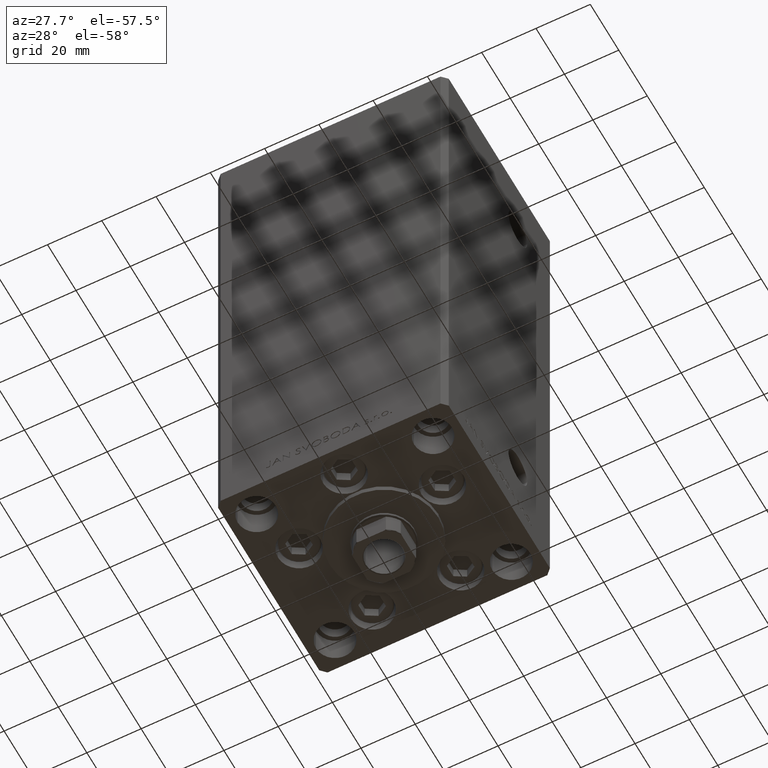
[diagram: clean part render]
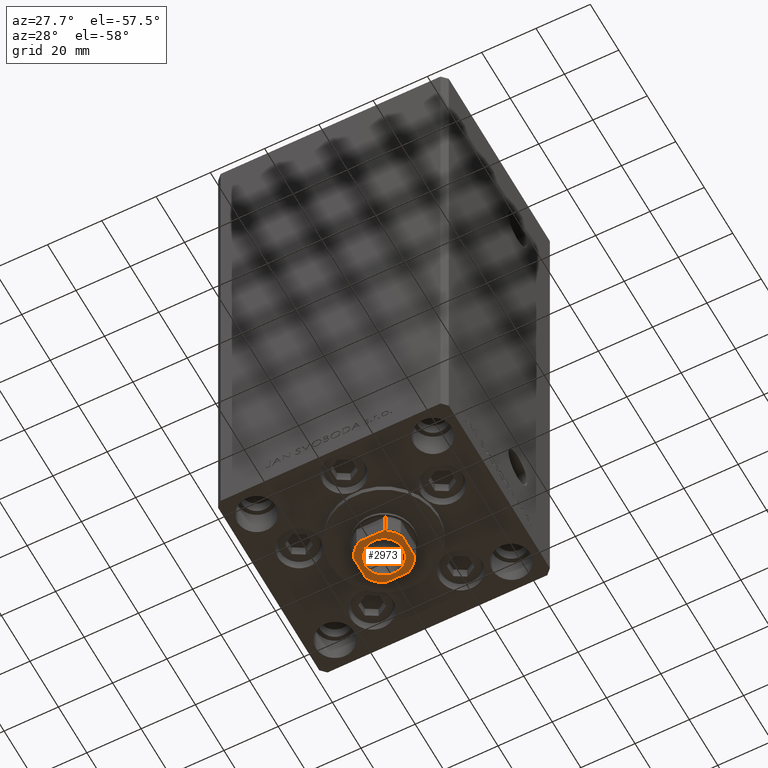
[diagram: same view with one face highlighted and labeled with its STEP entity id]
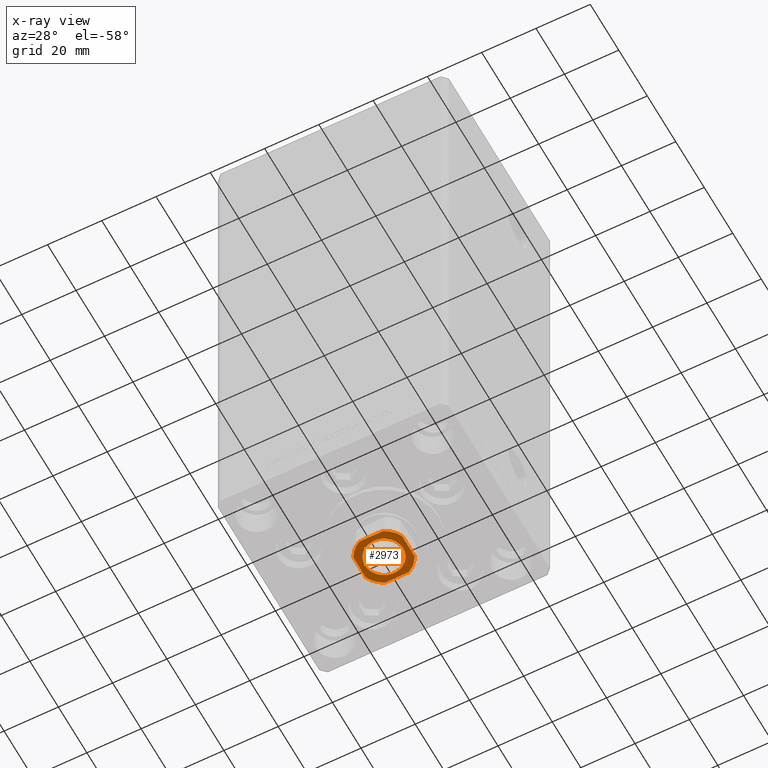
[diagram: x-ray of the same camera — body ghosted, the highlighted face saturated]
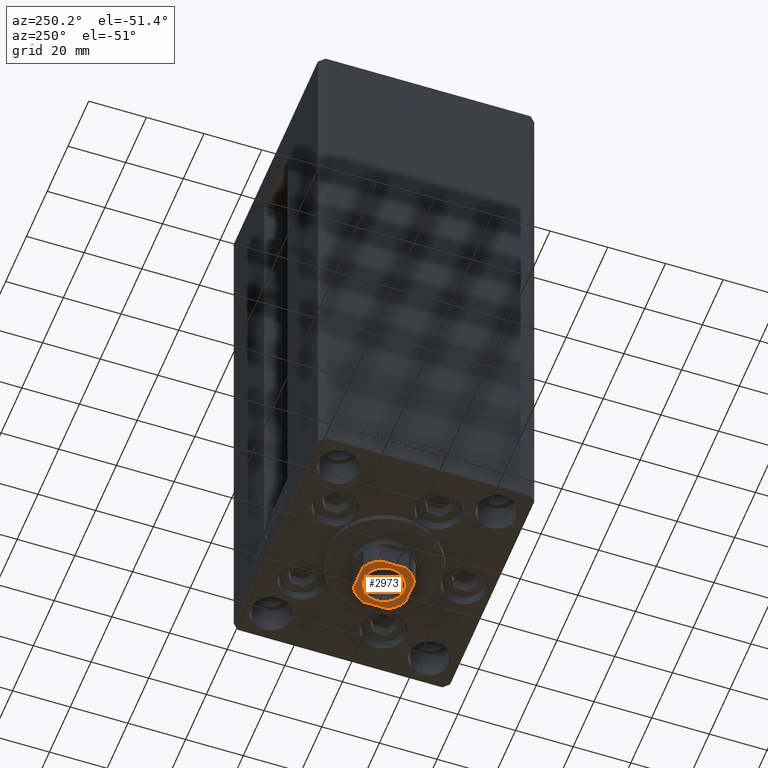
[diagram: same view with one face highlighted and labeled with its STEP entity id]
A machine part, auxiliary view. The second image highlights one B-rep face of the part: STEP entity #2973.
The next image is the same camera in x-ray: the body ghosted, the highlighted face saturated — about 0% of this face is hidden behind the body in this view.
A second angle (auxiliary view) of the same face is appended — the face is thin or edge-on in the first view.
In plain terms, the highlighted planar face has unit normal (0, 0, -1).
Its self-contained STEP definition (entity closure, byte-faithful):
#407 = ORIENTED_EDGE ( 'NONE', *, *, #11446, .T. ) ;
#577 = DIRECTION ( 'NONE',  ( 1.000000000000000000, 0.000000000000000000, 0.000000000000000000 ) ) ;
#586 = LINE ( 'NONE', #16747, #32883 ) ;
#851 = VERTEX_POINT ( 'NONE', #17449 ) ;
#2512 = FACE_BOUND ( 'NONE', #23410, .T. ) ;
#2888 = CIRCLE ( 'NONE', #44259, 7.050000000000028244 ) ;
#2910 = CARTESIAN_POINT ( 'NONE',  ( -4.358898943540671311, -9.000000000000001776, 175.7500000000000284 ) ) ;
#2973 = ADVANCED_FACE ( 'NONE', ( #2512, #17470 ), #36911, .T. ) ;
#3131 = CARTESIAN_POINT ( 'NONE',  ( 0.000000000000000000, 0.000000000000000000, 175.7500000000000284 ) ) ;
#3571 = EDGE_CURVE ( 'NONE', #11387, #29198, #12149, .T. ) ;
#5464 = VECTOR ( 'NONE', #9545, 1000.000000000000000 ) ;
#6089 = VERTEX_POINT ( 'NONE', #2910 ) ;
#6193 = VERTEX_POINT ( 'NONE', #27797 ) ;
#6340 = AXIS2_PLACEMENT_3D ( 'NONE', #17231, #25430, #17719 ) ;
#7433 = AXIS2_PLACEMENT_3D ( 'NONE', #27467, #23975, #577 ) ;
#9545 = DIRECTION ( 'NONE',  ( 1.000000000000000000, 0.000000000000000000, 0.000000000000000000 ) ) ;
#9819 = CIRCLE ( 'NONE', #7433, 10.00000000000000000 ) ;
#10771 = ORIENTED_EDGE ( 'NONE', *, *, #11124, .T. ) ;
#11102 = ORIENTED_EDGE ( 'NONE', *, *, #3571, .T. ) ;
#11124 = EDGE_CURVE ( 'NONE', #31172, #11387, #9819, .T. ) ;
#11387 = VERTEX_POINT ( 'NONE', #33659 ) ;
#11446 = EDGE_CURVE ( 'NONE', #44466, #18971, #19196, .T. ) ;
#11994 = ORIENTED_EDGE ( 'NONE', *, *, #43130, .T. ) ;
#12149 = LINE ( 'NONE', #31315, #31859 ) ;
#12717 = EDGE_LOOP ( 'NONE', ( #407, #18220, #43426, #10771, #11102, #18203, #17786, #40448 ) ) ;
#12793 = LINE ( 'NONE', #24493, #5464 ) ;
#14487 = CARTESIAN_POINT ( 'NONE',  ( -9.000000000000000000, -4.358898943540675752, 175.7500000000000284 ) ) ;
#16747 = CARTESIAN_POINT ( 'NONE',  ( -9.000000000000000000, 8.999999999999998224, 175.7500000000000284 ) ) ;
#17231 = CARTESIAN_POINT ( 'NONE',  ( 0.000000000000000000, 0.000000000000000000, 175.7500000000000284 ) ) ;
#17449 = CARTESIAN_POINT ( 'NONE',  ( 7.050000000000028244, 0.000000000000000000, 175.7500000000000284 ) ) ;
#17470 = FACE_OUTER_BOUND ( 'NONE', #12717, .T. ) ;
#17719 = DIRECTION ( 'NONE',  ( 1.000000000000000000, 0.000000000000000000, 0.000000000000000000 ) ) ;
#17786 = ORIENTED_EDGE ( 'NONE', *, *, #31800, .T. ) ;
#18203 = ORIENTED_EDGE ( 'NONE', *, *, #47242, .T. ) ;
#18220 = ORIENTED_EDGE ( 'NONE', *, *, #28429, .T. ) ;
#18564 = AXIS2_PLACEMENT_3D ( 'NONE', #38787, #46505, #20327 ) ;
#18971 = VERTEX_POINT ( 'NONE', #14487 ) ;
#19196 = LINE ( 'NONE', #39111, #36870 ) ;
#20171 = DIRECTION ( 'NONE',  ( 9.637352644315595243E-17, -1.000000000000000000, 0.000000000000000000 ) ) ;
#20327 = DIRECTION ( 'NONE',  ( 1.000000000000000000, 0.000000000000000000, 0.000000000000000000 ) ) ;
#23410 = EDGE_LOOP ( 'NONE', ( #11994, #29056 ) ) ;
#23975 = DIRECTION ( 'NONE',  ( -0.000000000000000000, 0.000000000000000000, 1.000000000000000000 ) ) ;
#24493 = CARTESIAN_POINT ( 'NONE',  ( -8.999999999999998224, -9.000000000000001776, 175.7500000000000284 ) ) ;
#24849 = CARTESIAN_POINT ( 'NONE',  ( -7.050000000000028244, 8.633759933988874488E-16, 175.7500000000000284 ) ) ;
#25221 = DIRECTION ( 'NONE',  ( 0.000000000000000000, -0.000000000000000000, -1.000000000000000000 ) ) ;
#25430 = DIRECTION ( 'NONE',  ( -0.000000000000000000, 0.000000000000000000, 1.000000000000000000 ) ) ;
#25819 = DIRECTION ( 'NONE',  ( 1.000000000000000000, 0.000000000000000000, 0.000000000000000000 ) ) ;
#26975 = CIRCLE ( 'NONE', #28559, 10.00000000000000000 ) ;
#27315 = CIRCLE ( 'NONE', #18564, 10.00000000000000000 ) ;
#27467 = CARTESIAN_POINT ( 'NONE',  ( 0.000000000000000000, 0.000000000000000000, 175.7500000000000284 ) ) ;
#27797 = CARTESIAN_POINT ( 'NONE',  ( -4.358898943540678417, 8.999999999999998224, 175.7500000000000284 ) ) ;
#28216 = CARTESIAN_POINT ( 'NONE',  ( -9.000000000000000000, 4.358898943540674864, 175.7500000000000284 ) ) ;
#28229 = CIRCLE ( 'NONE', #40967, 7.050000000000028244 ) ;
#28304 = DIRECTION ( 'NONE',  ( -9.637352644315595243E-17, 1.000000000000000000, -0.000000000000000000 ) ) ;
#28429 = EDGE_CURVE ( 'NONE', #18971, #6089, #27315, .T. ) ;
#28559 = AXIS2_PLACEMENT_3D ( 'NONE', #3131, #29559, #25819 ) ;
#29056 = ORIENTED_EDGE ( 'NONE', *, *, #35371, .T. ) ;
#29198 = VERTEX_POINT ( 'NONE', #49029 ) ;
#29559 = DIRECTION ( 'NONE',  ( -0.000000000000000000, 0.000000000000000000, 1.000000000000000000 ) ) ;
#29710 = CARTESIAN_POINT ( 'NONE',  ( 0.000000000000000000, 0.000000000000000000, 175.7500000000000284 ) ) ;
#30627 = CARTESIAN_POINT ( 'NONE',  ( 4.358898943540671311, -9.000000000000001776, 175.7500000000000284 ) ) ;
#30926 = VERTEX_POINT ( 'NONE', #34951 ) ;
#31172 = VERTEX_POINT ( 'NONE', #30627 ) ;
#31315 = CARTESIAN_POINT ( 'NONE',  ( 9.000000000000000000, 8.999999999999998224, 175.7500000000000284 ) ) ;
#31800 = EDGE_CURVE ( 'NONE', #30926, #6193, #586, .T. ) ;
#31859 = VECTOR ( 'NONE', #28304, 1000.000000000000000 ) ;
#32883 = VECTOR ( 'NONE', #43413, 1000.000000000000000 ) ;
#33659 = CARTESIAN_POINT ( 'NONE',  ( 9.000000000000001776, -4.358898943540675752, 175.7500000000000284 ) ) ;
#34951 = CARTESIAN_POINT ( 'NONE',  ( 4.358898943540677529, 8.999999999999998224, 175.7500000000000284 ) ) ;
#35371 = EDGE_CURVE ( 'NONE', #49089, #851, #28229, .T. ) ;
#35682 = CARTESIAN_POINT ( 'NONE',  ( 0.000000000000000000, 0.000000000000000000, 175.7500000000000284 ) ) ;
#36870 = VECTOR ( 'NONE', #20171, 1000.000000000000000 ) ;
#36911 = PLANE ( 'NONE',  #6340 ) ;
#36935 = DIRECTION ( 'NONE',  ( 1.000000000000000000, 0.000000000000000000, 0.000000000000000000 ) ) ;
#37319 = CARTESIAN_POINT ( 'NONE',  ( 0.000000000000000000, 0.000000000000000000, 175.7500000000000284 ) ) ;
#38787 = CARTESIAN_POINT ( 'NONE',  ( 0.000000000000000000, 0.000000000000000000, 175.7500000000000284 ) ) ;
#39111 = CARTESIAN_POINT ( 'NONE',  ( -9.000000000000000000, 8.999999999999998224, 175.7500000000000284 ) ) ;
#39428 = DIRECTION ( 'NONE',  ( 0.000000000000000000, -0.000000000000000000, -1.000000000000000000 ) ) ;
#39533 = AXIS2_PLACEMENT_3D ( 'NONE', #37319, #48780, #47786 ) ;
#39808 = EDGE_CURVE ( 'NONE', #6193, #44466, #40316, .T. ) ;
#40316 = CIRCLE ( 'NONE', #39533, 10.00000000000000000 ) ;
#40448 = ORIENTED_EDGE ( 'NONE', *, *, #39808, .T. ) ;
#40967 = AXIS2_PLACEMENT_3D ( 'NONE', #35682, #39428, #47388 ) ;
#43130 = EDGE_CURVE ( 'NONE', #851, #49089, #2888, .T. ) ;
#43413 = DIRECTION ( 'NONE',  ( -1.000000000000000000, -0.000000000000000000, -0.000000000000000000 ) ) ;
#43426 = ORIENTED_EDGE ( 'NONE', *, *, #46513, .T. ) ;
#44259 = AXIS2_PLACEMENT_3D ( 'NONE', #29710, #25221, #36935 ) ;
#44466 = VERTEX_POINT ( 'NONE', #28216 ) ;
#46505 = DIRECTION ( 'NONE',  ( -0.000000000000000000, 0.000000000000000000, 1.000000000000000000 ) ) ;
#46513 = EDGE_CURVE ( 'NONE', #6089, #31172, #12793, .T. ) ;
#47242 = EDGE_CURVE ( 'NONE', #29198, #30926, #26975, .T. ) ;
#47388 = DIRECTION ( 'NONE',  ( 1.000000000000000000, 0.000000000000000000, 0.000000000000000000 ) ) ;
#47786 = DIRECTION ( 'NONE',  ( 1.000000000000000000, 0.000000000000000000, 0.000000000000000000 ) ) ;
#48780 = DIRECTION ( 'NONE',  ( -0.000000000000000000, 0.000000000000000000, 1.000000000000000000 ) ) ;
#49029 = CARTESIAN_POINT ( 'NONE',  ( 9.000000000000000000, 4.358898943540675752, 175.7500000000000284 ) ) ;
#49089 = VERTEX_POINT ( 'NONE', #24849 ) ;